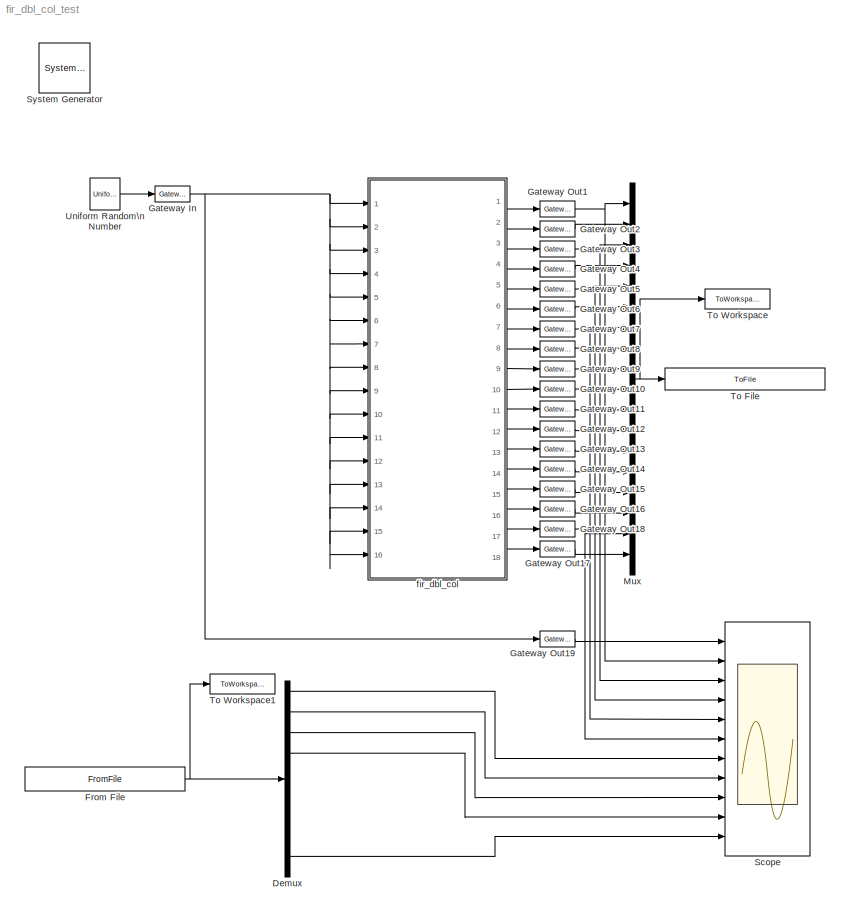
MODEL fir_dbl_col_test
KIND model
BLOCK [Reference]  System Generator  REF=xbsIndex_r4/ System Generator
  AttributesFormatString = System\\nGenerator
  FunctionWithSeparateData = off
  Ports = []
  RTWMemSecDataConstants = Inherit from model
  RTWMemSecDataInternal = Inherit from model
  RTWMemSecDataParameters = Inherit from model
  RTWMemSecFuncExecute = Inherit from model
  RTWMemSecFuncInitTerm = Inherit from model
  ShowPortLabels = FromPortIcon
  SourceBlock = xbsIndex_r4/ System Generator
  SourceType = Xilinx System Generator Block
  SystemSampleTime = -1
  Tag = genX
  UserData = DataTag0
  UserDataPersistent = on
  block_type = sysgen
  block_version = 10.1.1
  clock_wrapper = Clock Enables
  core_generation = According to Block Masks
  dbl_ovrd = According to Block Masks
  dcm_input_clock_period = 100
  deprecated_control = off
  directory = ./netlist
  eval_field = 0
  has_advanced_control = 0
  incr_netlist = off
  infoedit = System Generator
  package = ff668
  part = xc4vsx35
  run_coregen = off
  sg_icon_stat = 51,50,-1,-1,red,beige,0,07734,right
  sg_mask_display = fprintf('','COMMENT: begin icon graphics');\npatch([0 51 51 0 ],[0 0 50 50 ],[0.93 0.92 0.86]);\npatch([12 4 16 4 12 25 29 33 47 36 25 17 29 17 25 36 47 33 29 25 12 ],[5 13 25 37 45 45 41 45 45 34 45 37 25 13 5 16 5 5 9 5 5 ],[0.6 0.2 0.25]);\nplot([0 51 51 0 0 ],[0 0 50 50 0 ]);\nfprintf('','COMMENT: end icon graphics');\nfprintf('','COMMENT: begin icon text');\nfprintf('','COMMENT: end icon text...<+5ch>
  sggui_pos = -1,-1,-1,-1
  simulink_period = 1
  speed = -10
  synthesis_tool = XST
  sysclk_period = 100
  testbench = off
  trim_vbits = Everywhere in SubSystem
  xilinxfamily = Virtex4
BLOCK [Demux] Demux
  DisplayOption = bar
  Outputs = 18
  Ports = [1, 18]
BLOCK [FromFile] From File
  FileName = fir_dbl_col_test_reference.mat
  SampleTime = 1
BLOCK [Reference] Gateway In  REF=xbsIndex_r4/Gateway In
  LOCs = {}
  Ports = [1, 1]
  SourceBlock = xbsIndex_r4/Gateway In
  SourceType = Xilinx Gateway In Block
  arith_type = Signed  (2's comp)
  bin_pt = 15
  block_type = gatewayin
  block_version = 10.1.1
  dbl_ovrd = off
  has_advanced_control = 0
  hdl_port = on
  infoedit = Gateway in block.  Converts inputs of type Simulink integer, double and fixed point to  Xilinx fixed point type.<P><P>Hardware notes:  In hardware these blocks become top level input ports.
  locs_specified = off
  n_bits = 16
  overflow = Saturate
  period = 1
  quantization = Round  (unbiased: +/- Inf)
  sg_icon_stat = 35,16,1,1,white,yellow,0,00d3666e,right,
  sg_mask_display = fprintf('','COMMENT: begin icon graphics');\npatch([0 1 1 0 ],[0 0 1 1 ],[0.95 0.93 0.65]);\npatch([0.4 0.314286 0.428571 0.314286 0.4 0.514286 0.542857 0.571429 0.714286 0.6 0.514286 0.457143 0.571429 0.457143 0.514286 0.6 0.714286 0.571429 0.542857 0.514286 0.4 ],[0.125 0.3125 0.5625 0.8125 1 1 0.9375 1 1 0.75 0.9375 0.8125 0.5625 0.3125 0.1875 0.375 0.125 0.125 0.1875 0.125 0.125 ],[0.98 0.96 0...<+290ch>
  sggui_pos = 20,20,407,458
  timing_constraint = None
  xl_area = [0,0,0,0,0,0,0]
  xl_use_area = off
BLOCK [Reference] Gateway Out1  REF=xbsIndex_r4/Gateway Out
  LOCs = {}
  Ports = [1, 1]
  SourceBlock = xbsIndex_r4/Gateway Out
  SourceType = Xilinx Gateway Out Block
  block_type = gatewayout
  block_version = 10.1.1
  has_advanced_control = 0
  hdl_port = on
  infoedit = Gateway out block.  Converts Xilinx fixed point inputs into ouputs of type Simulink integer, double, or fixed point.<P><P>Hardware notes:  In hardware these blocks become top level output ports or are discarded, depending on how they are configured.  <repeated x19 — deduplicated; at blocks: Gateway Out1, Gateway Out10, Gateway Out11, Gateway Out12, Gateway Out13, Gateway Out14, Gateway Out15, Gateway Out16, Gateway Out17, Gateway Out18, Gateway Out19, Gateway Out2, Gateway Out3, Gateway Out4, Gateway Out5, Gateway Out6, +3 more>
  locs_specified = off
  sg_icon_stat = 35,16,1,1,white,yellow,0,cc31b7ac,right,
  sg_mask_display = fprintf('','COMMENT: begin icon graphics');\npatch([0 1 1 0 ],[0 0 1 1 ],[0.95 0.93 0.65]);\npatch([0.4 0.314286 0.428571 0.314286 0.4 0.514286 0.542857 0.571429 0.714286 0.6 0.514286 0.457143 0.571429 0.457143 0.514286 0.6 0.714286 0.571429 0.542857 0.514286 0.4 ],[0.125 0.3125 0.5625 0.8125 1 1 0.9375 1 1 0.75 0.9375 0.8125 0.5625 0.3125 0.1875 0.375 0.125 0.125 0.1875 0.125 0.125 ],[0.98 0.96 0...<+291ch>  <repeated x19 — deduplicated; at blocks: Gateway Out1, Gateway Out10, Gateway Out11, Gateway Out12, Gateway Out13, Gateway Out14, Gateway Out15, Gateway Out16, Gateway Out17, Gateway Out18, Gateway Out19, Gateway Out2, Gateway Out3, Gateway Out4, Gateway Out5, Gateway Out6, +3 more>
  sggui_pos = -1,-1,-1,-1
  timing_constraint = None
  xl_area = [0,0,0,0,0,0,0]
  xl_use_area = off
BLOCK [Reference] Gateway Out10  REF=xbsIndex_r4/Gateway Out
  LOCs = {}
  Ports = [1, 1]
  SourceBlock = xbsIndex_r4/Gateway Out
  SourceType = Xilinx Gateway Out Block
  block_type = gatewayout
  block_version = 10.1.1
  has_advanced_control = 0
  hdl_port = on
  locs_specified = off
  sg_icon_stat = 35,16,1,1,white,yellow,0,cc31b7ac,right,
  sggui_pos = -1,-1,-1,-1
  timing_constraint = None
  xl_area = [0,0,0,0,0,0,0]
  xl_use_area = off
BLOCK [Reference] Gateway Out11  REF=xbsIndex_r4/Gateway Out
  LOCs = {}
  Ports = [1, 1]
  SourceBlock = xbsIndex_r4/Gateway Out
  SourceType = Xilinx Gateway Out Block
  block_type = gatewayout
  block_version = 10.1.1
  has_advanced_control = 0
  hdl_port = on
  locs_specified = off
  sg_icon_stat = 35,16,1,1,white,yellow,0,cc31b7ac,right,
  sggui_pos = -1,-1,-1,-1
  timing_constraint = None
  xl_area = [0,0,0,0,0,0,0]
  xl_use_area = off
BLOCK [Reference] Gateway Out12  REF=xbsIndex_r4/Gateway Out
  LOCs = {}
  Ports = [1, 1]
  SourceBlock = xbsIndex_r4/Gateway Out
  SourceType = Xilinx Gateway Out Block
  block_type = gatewayout
  block_version = 10.1.1
  has_advanced_control = 0
  hdl_port = on
  locs_specified = off
  sg_icon_stat = 35,16,1,1,white,yellow,0,cc31b7ac,right,
  sggui_pos = -1,-1,-1,-1
  timing_constraint = None
  xl_area = [0,0,0,0,0,0,0]
  xl_use_area = off
BLOCK [Reference] Gateway Out13  REF=xbsIndex_r4/Gateway Out
  LOCs = {}
  Ports = [1, 1]
  SourceBlock = xbsIndex_r4/Gateway Out
  SourceType = Xilinx Gateway Out Block
  block_type = gatewayout
  block_version = 10.1.1
  has_advanced_control = 0
  hdl_port = on
  locs_specified = off
  sg_icon_stat = 35,16,1,1,white,yellow,0,cc31b7ac,right,
  sggui_pos = -1,-1,-1,-1
  timing_constraint = None
  xl_area = [0,0,0,0,0,0,0]
  xl_use_area = off
BLOCK [Reference] Gateway Out14  REF=xbsIndex_r4/Gateway Out
  LOCs = {}
  Ports = [1, 1]
  SourceBlock = xbsIndex_r4/Gateway Out
  SourceType = Xilinx Gateway Out Block
  block_type = gatewayout
  block_version = 10.1.1
  has_advanced_control = 0
  hdl_port = on
  locs_specified = off
  sg_icon_stat = 35,16,1,1,white,yellow,0,cc31b7ac,right,
  sggui_pos = -1,-1,-1,-1
  timing_constraint = None
  xl_area = [0,0,0,0,0,0,0]
  xl_use_area = off
BLOCK [Reference] Gateway Out15  REF=xbsIndex_r4/Gateway Out
  LOCs = {}
  Ports = [1, 1]
  SourceBlock = xbsIndex_r4/Gateway Out
  SourceType = Xilinx Gateway Out Block
  block_type = gatewayout
  block_version = 10.1.1
  has_advanced_control = 0
  hdl_port = on
  locs_specified = off
  sg_icon_stat = 35,16,1,1,white,yellow,0,cc31b7ac,right,
  sggui_pos = -1,-1,-1,-1
  timing_constraint = None
  xl_area = [0,0,0,0,0,0,0]
  xl_use_area = off
BLOCK [Reference] Gateway Out16  REF=xbsIndex_r4/Gateway Out
  LOCs = {}
  Ports = [1, 1]
  SourceBlock = xbsIndex_r4/Gateway Out
  SourceType = Xilinx Gateway Out Block
  block_type = gatewayout
  block_version = 10.1.1
  has_advanced_control = 0
  hdl_port = on
  locs_specified = off
  sg_icon_stat = 35,16,1,1,white,yellow,0,cc31b7ac,right,
  sggui_pos = -1,-1,-1,-1
  timing_constraint = None
  xl_area = [0,0,0,0,0,0,0]
  xl_use_area = off
BLOCK [Reference] Gateway Out17  REF=xbsIndex_r4/Gateway Out
  LOCs = {}
  Ports = [1, 1]
  SourceBlock = xbsIndex_r4/Gateway Out
  SourceType = Xilinx Gateway Out Block
  block_type = gatewayout
  block_version = 10.1.1
  has_advanced_control = 0
  hdl_port = on
  locs_specified = off
  sg_icon_stat = 35,16,1,1,white,yellow,0,cc31b7ac,right,
  sggui_pos = -1,-1,-1,-1
  timing_constraint = None
  xl_area = [0,0,0,0,0,0,0]
  xl_use_area = off
BLOCK [Reference] Gateway Out18  REF=xbsIndex_r4/Gateway Out
  LOCs = {}
  Ports = [1, 1]
  SourceBlock = xbsIndex_r4/Gateway Out
  SourceType = Xilinx Gateway Out Block
  block_type = gatewayout
  block_version = 10.1.1
  has_advanced_control = 0
  hdl_port = on
  locs_specified = off
  sg_icon_stat = 35,16,1,1,white,yellow,0,cc31b7ac,right,
  sggui_pos = -1,-1,-1,-1
  timing_constraint = None
  xl_area = [0,0,0,0,0,0,0]
  xl_use_area = off
BLOCK [Reference] Gateway Out19  REF=xbsIndex_r4/Gateway Out
  LOCs = {}
  Ports = [1, 1]
  SourceBlock = xbsIndex_r4/Gateway Out
  SourceType = Xilinx Gateway Out Block
  block_type = gatewayout
  block_version = 10.1.1
  has_advanced_control = 0
  hdl_port = on
  locs_specified = off
  sg_icon_stat = 35,16,1,1,white,yellow,0,cc31b7ac,right,
  sggui_pos = -1,-1,-1,-1
  timing_constraint = None
  xl_area = [0,0,0,0,0,0,0]
  xl_use_area = off
BLOCK [Reference] Gateway Out2  REF=xbsIndex_r4/Gateway Out
  LOCs = {}
  Ports = [1, 1]
  SourceBlock = xbsIndex_r4/Gateway Out
  SourceType = Xilinx Gateway Out Block
  block_type = gatewayout
  block_version = 10.1.1
  has_advanced_control = 0
  hdl_port = on
  locs_specified = off
  sg_icon_stat = 35,16,1,1,white,yellow,0,cc31b7ac,right,
  sggui_pos = -1,-1,-1,-1
  timing_constraint = None
  xl_area = [0,0,0,0,0,0,0]
  xl_use_area = off
BLOCK [Reference] Gateway Out3  REF=xbsIndex_r4/Gateway Out
  LOCs = {}
  Ports = [1, 1]
  SourceBlock = xbsIndex_r4/Gateway Out
  SourceType = Xilinx Gateway Out Block
  block_type = gatewayout
  block_version = 10.1.1
  has_advanced_control = 0
  hdl_port = on
  locs_specified = off
  sg_icon_stat = 35,16,1,1,white,yellow,0,cc31b7ac,right,
  sggui_pos = -1,-1,-1,-1
  timing_constraint = None
  xl_area = [0,0,0,0,0,0,0]
  xl_use_area = off
BLOCK [Reference] Gateway Out4  REF=xbsIndex_r4/Gateway Out
  LOCs = {}
  Ports = [1, 1]
  SourceBlock = xbsIndex_r4/Gateway Out
  SourceType = Xilinx Gateway Out Block
  block_type = gatewayout
  block_version = 10.1.1
  has_advanced_control = 0
  hdl_port = on
  locs_specified = off
  sg_icon_stat = 35,16,1,1,white,yellow,0,cc31b7ac,right,
  sggui_pos = -1,-1,-1,-1
  timing_constraint = None
  xl_area = [0,0,0,0,0,0,0]
  xl_use_area = off
BLOCK [Reference] Gateway Out5  REF=xbsIndex_r4/Gateway Out
  LOCs = {}
  Ports = [1, 1]
  SourceBlock = xbsIndex_r4/Gateway Out
  SourceType = Xilinx Gateway Out Block
  block_type = gatewayout
  block_version = 10.1.1
  has_advanced_control = 0
  hdl_port = on
  locs_specified = off
  sg_icon_stat = 35,16,1,1,white,yellow,0,cc31b7ac,right,
  sggui_pos = -1,-1,-1,-1
  timing_constraint = None
  xl_area = [0,0,0,0,0,0,0]
  xl_use_area = off
BLOCK [Reference] Gateway Out6  REF=xbsIndex_r4/Gateway Out
  LOCs = {}
  Ports = [1, 1]
  SourceBlock = xbsIndex_r4/Gateway Out
  SourceType = Xilinx Gateway Out Block
  block_type = gatewayout
  block_version = 10.1.1
  has_advanced_control = 0
  hdl_port = on
  locs_specified = off
  sg_icon_stat = 35,16,1,1,white,yellow,0,cc31b7ac,right,
  sggui_pos = -1,-1,-1,-1
  timing_constraint = None
  xl_area = [0,0,0,0,0,0,0]
  xl_use_area = off
BLOCK [Reference] Gateway Out7  REF=xbsIndex_r4/Gateway Out
  LOCs = {}
  Ports = [1, 1]
  SourceBlock = xbsIndex_r4/Gateway Out
  SourceType = Xilinx Gateway Out Block
  block_type = gatewayout
  block_version = 10.1.1
  has_advanced_control = 0
  hdl_port = on
  locs_specified = off
  sg_icon_stat = 35,16,1,1,white,yellow,0,cc31b7ac,right,
  sggui_pos = -1,-1,-1,-1
  timing_constraint = None
  xl_area = [0,0,0,0,0,0,0]
  xl_use_area = off
BLOCK [Reference] Gateway Out8  REF=xbsIndex_r4/Gateway Out
  LOCs = {}
  Ports = [1, 1]
  SourceBlock = xbsIndex_r4/Gateway Out
  SourceType = Xilinx Gateway Out Block
  block_type = gatewayout
  block_version = 10.1.1
  has_advanced_control = 0
  hdl_port = on
  locs_specified = off
  sg_icon_stat = 35,16,1,1,white,yellow,0,cc31b7ac,right,
  sggui_pos = -1,-1,-1,-1
  timing_constraint = None
  xl_area = [0,0,0,0,0,0,0]
  xl_use_area = off
BLOCK [Reference] Gateway Out9  REF=xbsIndex_r4/Gateway Out
  LOCs = {}
  Ports = [1, 1]
  SourceBlock = xbsIndex_r4/Gateway Out
  SourceType = Xilinx Gateway Out Block
  block_type = gatewayout
  block_version = 10.1.1
  has_advanced_control = 0
  hdl_port = on
  locs_specified = off
  sg_icon_stat = 35,16,1,1,white,yellow,0,cc31b7ac,right,
  sggui_pos = -1,-1,-1,-1
  timing_constraint = None
  xl_area = [0,0,0,0,0,0,0]
  xl_use_area = off
BLOCK [Mux] Mux
  DisplayOption = bar
  Inputs = 18
  Ports = [18, 1]
BLOCK [Scope] Scope
  DataFormat = StructureWithTime
  Floating = off
  NumInputPorts = 11
  Ports = [11]
  SampleTime = 0
  YMax = 5~5~5~5~5~5~5~5~5~5~5
  YMin = -5~-5~-5~-5~-5~-5~-5~-5~-5~-5~-5
BLOCK [ToFile] To File
  Filename = fir_dbl_col_test_output.mat
  MatrixName = output
BLOCK [ToWorkspace] To Workspace
  MaxDataPoints = inf
  SampleTime = -1
  SaveFormat = Array
  VariableName = output
BLOCK [ToWorkspace] To Workspace1
  MaxDataPoints = inf
  SampleTime = -1
  SaveFormat = Array
  VariableName = reference
BLOCK [UniformRandomNumber] Uniform Random\nNumber
  SampleTime = 1
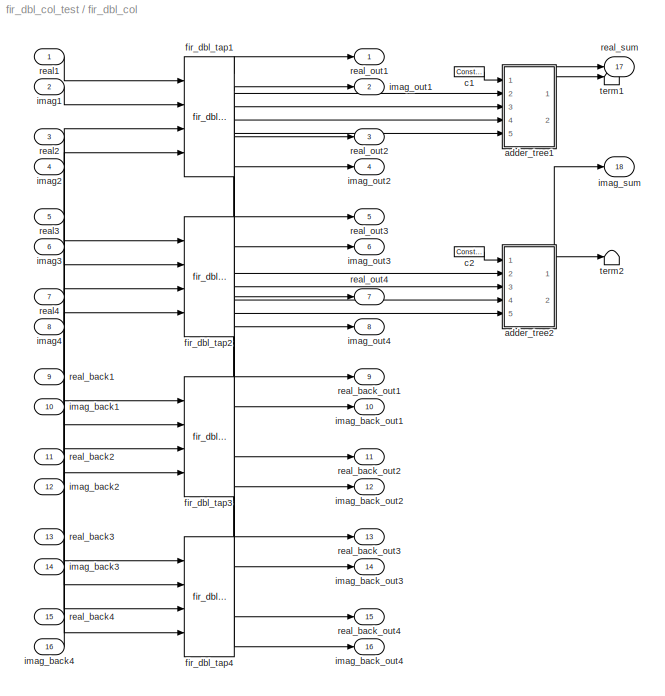
BLOCK [SubSystem] fir_dbl_col
  AncestorBlock = casper_library_downconverter/fir_dbl_col
  FunctionWithSeparateData = off
  MaskCallbackString = |||||||
  MaskEnableString = on,on,on,on,on,on,on,on
  MaskHelp = eval('xlWeb(''http://casper.berkeley.edu/wiki/Fir_dbl_col'')')
  MaskHideContents = off
  MaskIconFrame = on
  MaskIconOpaque = on
  MaskIconRotate = none
  MaskIconUnits = autoscale
  MaskInitialization = fir_dbl_col_init(gcb, ...\n    'n_inputs', n_inputs, ...\n    'coeff', coeff, ...\n    'mult_latency', mult_latency, ...\n    'add_latency', add_latency, ...\n    'coeff_bit_width', coeff_bit_width, ...\n    'coeff_bin_pt', coeff_bin_pt,  ...\n    'first_stage_hdl', first_stage_hdl, ...\n    'adder_imp', adder_imp);
  MaskPromptString = Inputs|Coefficients|Add latency|Mult Latency|Coefficient bit width|Coefficient binary point|Implement first stage of adder trees on output as behavioural HDL|Adder implementation
  MaskSelfModifiable = on
  MaskStyleString = edit,edit,edit,edit,edit,edit,checkbox,popup(Behavioral|Fabric|DSP48)
  MaskTabNameString = ,,,,,,,
  MaskToolTipString = on,on,on,on,on,on,on,on
  MaskTunableValueString = on,on,on,on,on,on,on,on
  MaskType = fir_dbl_col
  MaskValueString = 4|getfield( getfield( get_param( gcb,'UserData' ), 'parameters'),'coeff')|2|2|18|17|on|DSP48
  MaskVarAliasString = ,,,,,,,
  MaskVariables = n_inputs=@1;coeff=@2;add_latency=@3;mult_latency=@4;coeff_bit_width=@5;coeff_bin_pt=@6;first_stage_hdl=&7;adder_imp=&8;
  MaskVisibilityString = on,on,on,on,on,on,on,on
  MinAlgLoopOccurrences = off
  Opaque = off
  Ports = [16, 18]
  PropExecContextOutsideSubsystem = off
  RTWSystemCode = Auto
  RequestExecContextInheritance = off
  UserData = DataTag1
  UserDataPersistent = on
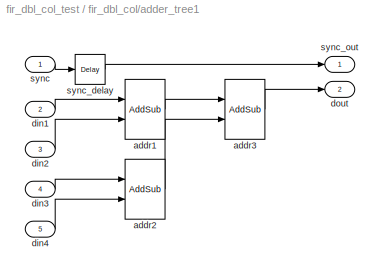
BLOCK [SubSystem] fir_dbl_col/adder_tree1
  AncestorBlock = casper_library_misc/adder_tree
  AttributesFormatString = latency 4
  FunctionWithSeparateData = off
  MaskCallbackString = |||
  MaskDescription = Sums all inputs using a tree of adds and delays.\n\nNumber of inputs: The number of inputs to the block to be summed\nAdd latency: The number of clock cycles to perform one addition (affects timing)..\nAdder implementation: choice of fabric or DSP48E core, or behavioral HDL\nUse behavioural HDL for first stage of adders: Causes the first stage of adders to be absorbed into DSP blocks if multiplier...<+59ch>
  MaskEnableString = on,on,on,on
  MaskHelp = eval('xlWeb(''http://casper.berkeley.edu/wiki/Adder_tree'')')
  MaskHideContents = off
  MaskIconFrame = on
  MaskIconOpaque = on
  MaskIconRotate = none
  MaskIconUnits = autoscale
  MaskInitialization = adder_tree_init(gcb, ...\n    'n_inputs', n_inputs, ...\n    'latency', latency, ...\n    'adder_imp', adder_imp, ...\n    'first_stage_hdl', first_stage_hdl);
  MaskPromptString = Number of Inputs|Add Latency|Adder implementation|Use behavioural HDL for first stage of adders
  MaskSelfModifiable = on
  MaskStyleString = edit,edit,popup(Behavioral|Fabric|DSP48),checkbox
  MaskTabNameString = ,,,
  MaskToolTipString = on,on,on,on
  MaskTunableValueString = on,on,on,on
  MaskType = adder_tree
  MaskValueString = 4|2|DSP48|on
  MaskVarAliasString = ,,,
  MaskVariables = n_inputs=@1;latency=@2;adder_imp=&3;first_stage_hdl=&4;
  MaskVisibilityString = on,on,on,on
  MinAlgLoopOccurrences = off
  Opaque = off
  Ports = [5, 2]
  PropExecContextOutsideSubsystem = off
  RTWSystemCode = Auto
  RequestExecContextInheritance = off
  UserData = DataTag2
  UserDataPersistent = on
BLOCK [Reference] fir_dbl_col/adder_tree1/addr1  REF=xbsIndex_r4/AddSub
  Ports = [2, 1]
  SourceBlock = xbsIndex_r4/AddSub
  SourceType = Xilinx Adder/Subtracter Block
  arith_type = Unsigned
  bin_pt = 14
  block_type = addsub
  block_version = 11.4
  dbl_ovrd = off
  en = off
  has_advanced_control = 0
  hw_selection = DSP48
  latency = 2
  mode = Addition
  n_bits = 16
  overflow = Wrap
  pipelined = on
  precision = Full
  quantization = Truncate
  sg_icon_stat = 40,60,2,1,white,blue,0,4922a24f,right,
  sg_mask_display = fprintf('','COMMENT: begin icon graphics');\npatch([0 1 1 0 ],[0 0 1 1 ],[0.77 0.82 0.91]);\npatch([0.25 0.075 0.3 0.075 0.25 0.525 0.6 0.675 0.95 0.725 0.5 0.35 0.6 0.35 0.5 0.725 0.95 0.675 0.6 0.525 0.25 ],[0.233333 0.35 0.5 0.65 0.766667 0.766667 0.716667 0.766667 0.766667 0.616667 0.766667 0.666667 0.5 0.333333 0.233333 0.383333 0.233333 0.233333 0.283333 0.233333 0.233333 ],[0.98 0.96 0.92])...<+386ch>  <repeated x6 — deduplicated; at blocks: addr1, addr2, addr3>
  sggui_pos = 22,98,419,344
  use_behavioral_HDL = on
  use_carryin = off
  use_carryout = off
  use_rpm = on
  xl_area = [0,0,0,0,0,0,0]
  xl_use_area = off
BLOCK [Reference] fir_dbl_col/adder_tree1/addr2  REF=xbsIndex_r4/AddSub
  Ports = [2, 1]
  SourceBlock = xbsIndex_r4/AddSub
  SourceType = Xilinx Adder/Subtracter Block
  arith_type = Unsigned
  bin_pt = 14
  block_type = addsub
  block_version = 11.4
  dbl_ovrd = off
  en = off
  has_advanced_control = 0
  hw_selection = DSP48
  latency = 2
  mode = Addition
  n_bits = 16
  overflow = Wrap
  pipelined = on
  precision = Full
  quantization = Truncate
  sg_icon_stat = 40,60,2,1,white,blue,0,4922a24f,right,
  sggui_pos = -1,-1,-1,-1
  use_behavioral_HDL = on
  use_carryin = off
  use_carryout = off
  use_rpm = on
  xl_area = [0,0,0,0,0,0,0]
  xl_use_area = off
BLOCK [Reference] fir_dbl_col/adder_tree1/addr3  REF=xbsIndex_r4/AddSub
  Ports = [2, 1]
  SourceBlock = xbsIndex_r4/AddSub
  SourceType = Xilinx Adder/Subtracter Block
  arith_type = Unsigned
  bin_pt = 14
  block_type = addsub
  block_version = 11.4
  dbl_ovrd = off
  en = off
  has_advanced_control = 0
  hw_selection = DSP48
  latency = 2
  mode = Addition
  n_bits = 16
  overflow = Wrap
  pipelined = on
  precision = Full
  quantization = Truncate
  sg_icon_stat = 40,60,2,1,white,blue,0,4922a24f,right,
  sggui_pos = -1,-1,-1,-1
  use_behavioral_HDL = off
  use_carryin = off
  use_carryout = off
  use_rpm = on
  xl_area = [0,0,0,0,0,0,0]
  xl_use_area = off
BLOCK [Inport] fir_dbl_col/adder_tree1/din1
  IconDisplay = Port number
  Port = 2
BLOCK [Inport] fir_dbl_col/adder_tree1/din2
  IconDisplay = Port number
  Port = 3
BLOCK [Inport] fir_dbl_col/adder_tree1/din3
  IconDisplay = Port number
  Port = 4
BLOCK [Inport] fir_dbl_col/adder_tree1/din4
  IconDisplay = Port number
  Port = 5
BLOCK [Outport] fir_dbl_col/adder_tree1/dout
  IconDisplay = Port number
  Port = 2
BLOCK [Inport] fir_dbl_col/adder_tree1/sync
  IconDisplay = Port number
BLOCK [Reference] fir_dbl_col/adder_tree1/sync_delay  REF=xbsIndex_r4/Delay
  Ports = [1, 1]
  SourceBlock = xbsIndex_r4/Delay
  SourceType = Xilinx Delay Block
  block_type = delay
  block_version = 11.4
  dbl_ovrd = off
  en = off
  has_advanced_control = 0
  infoedit = Hardware notes: A delay line is a chain, each link of which is an SRL16 followed by a flip-flop.
  latency = 4
  reg_retiming = on
  sg_icon_stat = 30,30,1,1,white,blue,0,d390c2d8,right,
  sg_mask_display = fprintf('','COMMENT: begin icon graphics');\npatch([0 1 1 0 ],[0 0 1 1 ],[0.77 0.82 0.91]);\npatch([0.233333 0.0666667 0.3 0.0666667 0.233333 0.5 0.566667 0.633333 0.9 0.666667 0.466667 0.3 0.5 0.3 0.466667 0.666667 0.9 0.633333 0.566667 0.5 0.233333 ],[0.1 0.266667 0.5 0.733333 0.9 0.9 0.833333 0.9 0.9 0.666667 0.866667 0.7 0.5 0.3 0.133333 0.333333 0.1 0.1 0.166667 0.1 0.1 ],[0.98 0.96 0.92]);\n...<+204ch>
  sggui_pos = 21,71,419,315
  xl_area = [0,0,0,0,0,0,0]
  xl_use_area = off
BLOCK [Outport] fir_dbl_col/adder_tree1/sync_out
  IconDisplay = Port number
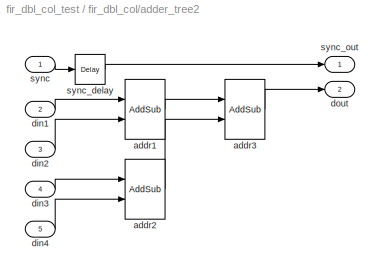
BLOCK [SubSystem] fir_dbl_col/adder_tree2
  AncestorBlock = casper_library_misc/adder_tree
  AttributesFormatString = latency 4
  FunctionWithSeparateData = off
  MaskCallbackString = |||
  MaskDescription = Sums all inputs using a tree of adds and delays.\n\nNumber of inputs: The number of inputs to the block to be summed\nAdd latency: The number of clock cycles to perform one addition (affects timing)..\nAdder implementation: choice of fabric or DSP48E core, or behavioral HDL\nUse behavioural HDL for first stage of adders: Causes the first stage of adders to be absorbed into DSP blocks if multiplier...<+59ch>
  MaskEnableString = on,on,on,on
  MaskHelp = eval('xlWeb(''http://casper.berkeley.edu/wiki/Adder_tree'')')
  MaskHideContents = off
  MaskIconFrame = on
  MaskIconOpaque = on
  MaskIconRotate = none
  MaskIconUnits = autoscale
  MaskInitialization = adder_tree_init(gcb, ...\n    'n_inputs', n_inputs, ...\n    'latency', latency, ...\n    'adder_imp', adder_imp, ...\n    'first_stage_hdl', first_stage_hdl);
  MaskPromptString = Number of Inputs|Add Latency|Adder implementation|Use behavioural HDL for first stage of adders
  MaskSelfModifiable = on
  MaskStyleString = edit,edit,popup(Behavioral|Fabric|DSP48),checkbox
  MaskTabNameString = ,,,
  MaskToolTipString = on,on,on,on
  MaskTunableValueString = on,on,on,on
  MaskType = adder_tree
  MaskValueString = 4|2|DSP48|on
  MaskVarAliasString = ,,,
  MaskVariables = n_inputs=@1;latency=@2;adder_imp=&3;first_stage_hdl=&4;
  MaskVisibilityString = on,on,on,on
  MinAlgLoopOccurrences = off
  Opaque = off
  Ports = [5, 2]
  PropExecContextOutsideSubsystem = off
  RTWSystemCode = Auto
  RequestExecContextInheritance = off
  UserData = DataTag3
  UserDataPersistent = on
BLOCK [Reference] fir_dbl_col/adder_tree2/addr1  REF=xbsIndex_r4/AddSub
  Ports = [2, 1]
  SourceBlock = xbsIndex_r4/AddSub
  SourceType = Xilinx Adder/Subtracter Block
  arith_type = Unsigned
  bin_pt = 14
  block_type = addsub
  block_version = 11.4
  dbl_ovrd = off
  en = off
  has_advanced_control = 0
  hw_selection = DSP48
  latency = 2
  mode = Addition
  n_bits = 16
  overflow = Wrap
  pipelined = on
  precision = Full
  quantization = Truncate
  sg_icon_stat = 40,60,2,1,white,blue,0,4922a24f,right,
  sggui_pos = 22,98,419,344
  use_behavioral_HDL = on
  use_carryin = off
  use_carryout = off
  use_rpm = on
  xl_area = [0,0,0,0,0,0,0]
  xl_use_area = off
BLOCK [Reference] fir_dbl_col/adder_tree2/addr2  REF=xbsIndex_r4/AddSub
  Ports = [2, 1]
  SourceBlock = xbsIndex_r4/AddSub
  SourceType = Xilinx Adder/Subtracter Block
  arith_type = Unsigned
  bin_pt = 14
  block_type = addsub
  block_version = 11.4
  dbl_ovrd = off
  en = off
  has_advanced_control = 0
  hw_selection = DSP48
  latency = 2
  mode = Addition
  n_bits = 16
  overflow = Wrap
  pipelined = on
  precision = Full
  quantization = Truncate
  sg_icon_stat = 40,60,2,1,white,blue,0,4922a24f,right,
  sggui_pos = -1,-1,-1,-1
  use_behavioral_HDL = on
  use_carryin = off
  use_carryout = off
  use_rpm = on
  xl_area = [0,0,0,0,0,0,0]
  xl_use_area = off
BLOCK [Reference] fir_dbl_col/adder_tree2/addr3  REF=xbsIndex_r4/AddSub
  Ports = [2, 1]
  SourceBlock = xbsIndex_r4/AddSub
  SourceType = Xilinx Adder/Subtracter Block
  arith_type = Unsigned
  bin_pt = 14
  block_type = addsub
  block_version = 11.4
  dbl_ovrd = off
  en = off
  has_advanced_control = 0
  hw_selection = DSP48
  latency = 2
  mode = Addition
  n_bits = 16
  overflow = Wrap
  pipelined = on
  precision = Full
  quantization = Truncate
  sg_icon_stat = 40,60,2,1,white,blue,0,4922a24f,right,
  sggui_pos = -1,-1,-1,-1
  use_behavioral_HDL = off
  use_carryin = off
  use_carryout = off
  use_rpm = on
  xl_area = [0,0,0,0,0,0,0]
  xl_use_area = off
BLOCK [Inport] fir_dbl_col/adder_tree2/din1
  IconDisplay = Port number
  Port = 2
BLOCK [Inport] fir_dbl_col/adder_tree2/din2
  IconDisplay = Port number
  Port = 3
BLOCK [Inport] fir_dbl_col/adder_tree2/din3
  IconDisplay = Port number
  Port = 4
BLOCK [Inport] fir_dbl_col/adder_tree2/din4
  IconDisplay = Port number
  Port = 5
BLOCK [Outport] fir_dbl_col/adder_tree2/dout
  IconDisplay = Port number
  Port = 2
BLOCK [Inport] fir_dbl_col/adder_tree2/sync
  IconDisplay = Port number
BLOCK [Reference] fir_dbl_col/adder_tree2/sync_delay  REF=xbsIndex_r4/Delay
  Ports = [1, 1]
  SourceBlock = xbsIndex_r4/Delay
  SourceType = Xilinx Delay Block
  block_type = delay
  block_version = 11.4
  dbl_ovrd = off
  en = off
  has_advanced_control = 0
  infoedit = Hardware notes: A delay line is a chain, each link of which is an SRL16 followed by a flip-flop.
  latency = 4
  reg_retiming = on
  sg_icon_stat = 30,30,1,1,white,blue,0,d390c2d8,right,
  sg_mask_display = fprintf('','COMMENT: begin icon graphics');\npatch([0 1 1 0 ],[0 0 1 1 ],[0.77 0.82 0.91]);\npatch([0.233333 0.0666667 0.3 0.0666667 0.233333 0.5 0.566667 0.633333 0.9 0.666667 0.466667 0.3 0.5 0.3 0.466667 0.666667 0.9 0.633333 0.566667 0.5 0.233333 ],[0.1 0.266667 0.5 0.733333 0.9 0.9 0.833333 0.9 0.9 0.666667 0.866667 0.7 0.5 0.3 0.133333 0.333333 0.1 0.1 0.166667 0.1 0.1 ],[0.98 0.96 0.92]);\n...<+204ch>
  sggui_pos = 21,71,419,315
  xl_area = [0,0,0,0,0,0,0]
  xl_use_area = off
BLOCK [Outport] fir_dbl_col/adder_tree2/sync_out
  IconDisplay = Port number
BLOCK [Reference] fir_dbl_col/c1  REF=xbsIndex_r4/Constant
  Ports = [0, 1]
  SourceBlock = xbsIndex_r4/Constant
  SourceType = Xilinx Constant Block Block
  arith_type = Signed (2's comp)
  bin_pt = 14
  block_type = constant
  block_version = 11.4
  carry = CIN
  const = 1
  dbl_ovrd = off
  dsp48_infoedit = The use of this block for DSP48 instructions is deprecated.  Please use the Opmode block.
  equ = P=C
  explicit_period = on
  has_advanced_control = 0
  inp1 = P
  inp2 = PCIN>>17
  n_bits = 16
  opr = +
  opselect = C
  period = 1
  sg_icon_stat = 30,10,0,1,white,blue,0,1c72b5be,right,
  sg_mask_display = fprintf('','COMMENT: begin icon graphics');\npatch([0 1 1 0 ],[0 0 1 1 ],[0.77 0.82 0.91]);\npatch([0.433333 0.366667 0.433333 0.366667 0.433333 0.533333 0.566667 0.6 0.7 0.633333 0.566667 0.5 0.566667 0.5 0.566667 0.633333 0.7 0.6 0.566667 0.533333 0.433333 ],[0.1 0.3 0.5 0.7 0.9 0.9 0.8 0.9 0.9 0.7 0.9 0.7 0.5 0.3 0.1 0.3 0.1 0.1 0.2 0.1 0.1 ],[0.98 0.96 0.92]);\nplot([0 1 1 0 0 ],[0 0 1 1 0 ]);...<+169ch>
  sggui_pos = -1,-1,-1,-1
BLOCK [Reference] fir_dbl_col/c2  REF=xbsIndex_r4/Constant
  Ports = [0, 1]
  SourceBlock = xbsIndex_r4/Constant
  SourceType = Xilinx Constant Block Block
  arith_type = Signed (2's comp)
  bin_pt = 14
  block_type = constant
  block_version = 11.4
  carry = CIN
  const = 1
  dbl_ovrd = off
  dsp48_infoedit = The use of this block for DSP48 instructions is deprecated.  Please use the Opmode block.
  equ = P=C
  explicit_period = on
  has_advanced_control = 0
  inp1 = P
  inp2 = PCIN>>17
  n_bits = 16
  opr = +
  opselect = C
  period = 1
  sg_icon_stat = 30,10,0,1,white,blue,0,1c72b5be,right,
  sg_mask_display = fprintf('','COMMENT: begin icon graphics');\npatch([0 1 1 0 ],[0 0 1 1 ],[0.77 0.82 0.91]);\npatch([0.433333 0.366667 0.433333 0.366667 0.433333 0.533333 0.566667 0.6 0.7 0.633333 0.566667 0.5 0.566667 0.5 0.566667 0.633333 0.7 0.6 0.566667 0.533333 0.433333 ],[0.1 0.3 0.5 0.7 0.9 0.9 0.8 0.9 0.9 0.7 0.9 0.7 0.5 0.3 0.1 0.3 0.1 0.1 0.2 0.1 0.1 ],[0.98 0.96 0.92]);\nplot([0 1 1 0 0 ],[0 0 1 1 0 ]);...<+169ch>
  sggui_pos = -1,-1,-1,-1
BLOCK [Reference] fir_dbl_col/fir_dbl_tap1  REF=casper_library_downconverter/fir_dbl_tap
  FunctionWithSeparateData = off
  Ports = [4, 6]
  RTWMemSecDataConstants = Inherit from model
  RTWMemSecDataInternal = Inherit from model
  RTWMemSecDataParameters = Inherit from model
  RTWMemSecFuncExecute = Inherit from model
  RTWMemSecFuncInitTerm = Inherit from model
  ShowPortLabels = FromPortIcon
  SourceBlock = casper_library_downconverter/fir_dbl_tap
  SourceType = fir_dbl_tap
  SystemSampleTime = -1
  add_latency = 2
  coeff_bin_pt = 17
  coeff_bit_width = 18
  factor = 0.1
  mult_latency = 2
BLOCK [Reference] fir_dbl_col/fir_dbl_tap2  REF=casper_library_downconverter/fir_dbl_tap
  FunctionWithSeparateData = off
  Ports = [4, 6]
  RTWMemSecDataConstants = Inherit from model
  RTWMemSecDataInternal = Inherit from model
  RTWMemSecDataParameters = Inherit from model
  RTWMemSecFuncExecute = Inherit from model
  RTWMemSecFuncInitTerm = Inherit from model
  ShowPortLabels = FromPortIcon
  SourceBlock = casper_library_downconverter/fir_dbl_tap
  SourceType = fir_dbl_tap
  SystemSampleTime = -1
  add_latency = 2
  coeff_bin_pt = 17
  coeff_bit_width = 18
  factor = 0.2
  mult_latency = 2
BLOCK [Reference] fir_dbl_col/fir_dbl_tap3  REF=casper_library_downconverter/fir_dbl_tap
  FunctionWithSeparateData = off
  Ports = [4, 6]
  RTWMemSecDataConstants = Inherit from model
  RTWMemSecDataInternal = Inherit from model
  RTWMemSecDataParameters = Inherit from model
  RTWMemSecFuncExecute = Inherit from model
  RTWMemSecFuncInitTerm = Inherit from model
  ShowPortLabels = FromPortIcon
  SourceBlock = casper_library_downconverter/fir_dbl_tap
  SourceType = fir_dbl_tap
  SystemSampleTime = -1
  add_latency = 2
  coeff_bin_pt = 17
  coeff_bit_width = 18
  factor = 0.3
  mult_latency = 2
BLOCK [Reference] fir_dbl_col/fir_dbl_tap4  REF=casper_library_downconverter/fir_dbl_tap
  FunctionWithSeparateData = off
  Ports = [4, 6]
  RTWMemSecDataConstants = Inherit from model
  RTWMemSecDataInternal = Inherit from model
  RTWMemSecDataParameters = Inherit from model
  RTWMemSecFuncExecute = Inherit from model
  RTWMemSecFuncInitTerm = Inherit from model
  ShowPortLabels = FromPortIcon
  SourceBlock = casper_library_downconverter/fir_dbl_tap
  SourceType = fir_dbl_tap
  SystemSampleTime = -1
  add_latency = 2
  coeff_bin_pt = 17
  coeff_bit_width = 18
  factor = 0.4
  mult_latency = 2
BLOCK [Inport] fir_dbl_col/imag1
  IconDisplay = Port number
  Port = 2
BLOCK [Inport] fir_dbl_col/imag2
  IconDisplay = Port number
  Port = 4
BLOCK [Inport] fir_dbl_col/imag3
  IconDisplay = Port number
  Port = 6
BLOCK [Inport] fir_dbl_col/imag4
  IconDisplay = Port number
  Port = 8
BLOCK [Inport] fir_dbl_col/imag_back1
  IconDisplay = Port number
  Port = 10
BLOCK [Inport] fir_dbl_col/imag_back2
  IconDisplay = Port number
  Port = 12
BLOCK [Inport] fir_dbl_col/imag_back3
  IconDisplay = Port number
  Port = 14
BLOCK [Inport] fir_dbl_col/imag_back4
  IconDisplay = Port number
  Port = 16
BLOCK [Outport] fir_dbl_col/imag_back_out1
  IconDisplay = Port number
  Port = 10
BLOCK [Outport] fir_dbl_col/imag_back_out2
  IconDisplay = Port number
  Port = 12
BLOCK [Outport] fir_dbl_col/imag_back_out3
  IconDisplay = Port number
  Port = 14
BLOCK [Outport] fir_dbl_col/imag_back_out4
  IconDisplay = Port number
  Port = 16
BLOCK [Outport] fir_dbl_col/imag_out1
  IconDisplay = Port number
  Port = 2
BLOCK [Outport] fir_dbl_col/imag_out2
  IconDisplay = Port number
  Port = 4
BLOCK [Outport] fir_dbl_col/imag_out3
  IconDisplay = Port number
  Port = 6
BLOCK [Outport] fir_dbl_col/imag_out4
  IconDisplay = Port number
  Port = 8
BLOCK [Outport] fir_dbl_col/imag_sum
  IconDisplay = Port number
  Port = 18
BLOCK [Inport] fir_dbl_col/real1
  IconDisplay = Port number
BLOCK [Inport] fir_dbl_col/real2
  IconDisplay = Port number
  Port = 3
BLOCK [Inport] fir_dbl_col/real3
  IconDisplay = Port number
  Port = 5
BLOCK [Inport] fir_dbl_col/real4
  IconDisplay = Port number
  Port = 7
BLOCK [Inport] fir_dbl_col/real_back1
  IconDisplay = Port number
  Port = 9
BLOCK [Inport] fir_dbl_col/real_back2
  IconDisplay = Port number
  Port = 11
BLOCK [Inport] fir_dbl_col/real_back3
  IconDisplay = Port number
  Port = 13
BLOCK [Inport] fir_dbl_col/real_back4
  IconDisplay = Port number
  Port = 15
BLOCK [Outport] fir_dbl_col/real_back_out1
  IconDisplay = Port number
  Port = 9
BLOCK [Outport] fir_dbl_col/real_back_out2
  IconDisplay = Port number
  Port = 11
BLOCK [Outport] fir_dbl_col/real_back_out3
  IconDisplay = Port number
  Port = 13
BLOCK [Outport] fir_dbl_col/real_back_out4
  IconDisplay = Port number
  Port = 15
BLOCK [Outport] fir_dbl_col/real_out1
  IconDisplay = Port number
BLOCK [Outport] fir_dbl_col/real_out2
  IconDisplay = Port number
  Port = 3
BLOCK [Outport] fir_dbl_col/real_out3
  IconDisplay = Port number
  Port = 5
BLOCK [Outport] fir_dbl_col/real_out4
  IconDisplay = Port number
  Port = 7
BLOCK [Outport] fir_dbl_col/real_sum
  IconDisplay = Port number
  Port = 17
BLOCK [Terminator] fir_dbl_col/term1
BLOCK [Terminator] fir_dbl_col/term2
LINE Demux:1 -> Scope:7
LINE Demux:17 -> Scope:11
LINE Demux:3 -> Scope:8
LINE Demux:5 -> Scope:9
LINE Demux:7 -> Scope:10
NET From File:1 -> Demux:1, To Workspace1:1
NET Gateway In:1 -> Gateway Out19:1, fir_dbl_col:1, fir_dbl_col:10, fir_dbl_col:11, fir_dbl_col:12, fir_dbl_col:13, fir_dbl_col:14, fir_dbl_col:15, fir_dbl_col:16, fir_dbl_col:2, fir_dbl_col:3, fir_dbl_col:4, fir_dbl_col:5, fir_dbl_col:6, fir_dbl_col:7, fir_dbl_col:8, fir_dbl_col:9
LINE Gateway Out10:1 -> Mux:10
LINE Gateway Out11:1 -> Mux:11
LINE Gateway Out12:1 -> Mux:12
LINE Gateway Out13:1 -> Mux:13
LINE Gateway Out14:1 -> Mux:14
LINE Gateway Out15:1 -> Mux:15
LINE Gateway Out16:1 -> Mux:16
LINE Gateway Out17:1 -> Mux:18
NET Gateway Out18:1 -> Mux:17, Scope:6
LINE Gateway Out19:1 -> Scope:1
NET Gateway Out1:1 -> Mux:1, Scope:2
LINE Gateway Out2:1 -> Mux:2
NET Gateway Out3:1 -> Mux:3, Scope:3
LINE Gateway Out4:1 -> Mux:4
NET Gateway Out5:1 -> Mux:5, Scope:4
LINE Gateway Out6:1 -> Mux:6
NET Gateway Out7:1 -> Mux:7, Scope:5
LINE Gateway Out8:1 -> Mux:8
LINE Gateway Out9:1 -> Mux:9
NET Mux:1 -> To File:1, To Workspace:1
LINE Uniform Random\nNumber:1 -> Gateway In:1
LINE fir_dbl_col/adder_tree1/addr1:1 -> fir_dbl_col/adder_tree1/addr3:1
LINE fir_dbl_col/adder_tree1/addr2:1 -> fir_dbl_col/adder_tree1/addr3:2
LINE fir_dbl_col/adder_tree1/addr3:1 -> fir_dbl_col/adder_tree1/dout:1
LINE fir_dbl_col/adder_tree1/din1:1 -> fir_dbl_col/adder_tree1/addr1:1
LINE fir_dbl_col/adder_tree1/din2:1 -> fir_dbl_col/adder_tree1/addr1:2
LINE fir_dbl_col/adder_tree1/din3:1 -> fir_dbl_col/adder_tree1/addr2:1
LINE fir_dbl_col/adder_tree1/din4:1 -> fir_dbl_col/adder_tree1/addr2:2
LINE fir_dbl_col/adder_tree1/sync:1 -> fir_dbl_col/adder_tree1/sync_delay:1
LINE fir_dbl_col/adder_tree1/sync_delay:1 -> fir_dbl_col/adder_tree1/sync_out:1
LINE fir_dbl_col/adder_tree1:1 -> fir_dbl_col/term1:1
LINE fir_dbl_col/adder_tree1:2 -> fir_dbl_col/real_sum:1
LINE fir_dbl_col/adder_tree2/addr1:1 -> fir_dbl_col/adder_tree2/addr3:1
LINE fir_dbl_col/adder_tree2/addr2:1 -> fir_dbl_col/adder_tree2/addr3:2
LINE fir_dbl_col/adder_tree2/addr3:1 -> fir_dbl_col/adder_tree2/dout:1
LINE fir_dbl_col/adder_tree2/din1:1 -> fir_dbl_col/adder_tree2/addr1:1
LINE fir_dbl_col/adder_tree2/din2:1 -> fir_dbl_col/adder_tree2/addr1:2
LINE fir_dbl_col/adder_tree2/din3:1 -> fir_dbl_col/adder_tree2/addr2:1
LINE fir_dbl_col/adder_tree2/din4:1 -> fir_dbl_col/adder_tree2/addr2:2
LINE fir_dbl_col/adder_tree2/sync:1 -> fir_dbl_col/adder_tree2/sync_delay:1
LINE fir_dbl_col/adder_tree2/sync_delay:1 -> fir_dbl_col/adder_tree2/sync_out:1
LINE fir_dbl_col/adder_tree2:1 -> fir_dbl_col/term2:1
LINE fir_dbl_col/adder_tree2:2 -> fir_dbl_col/imag_sum:1
LINE fir_dbl_col/c1:1 -> fir_dbl_col/adder_tree1:1
LINE fir_dbl_col/c2:1 -> fir_dbl_col/adder_tree2:1
LINE fir_dbl_col/fir_dbl_tap1:1 -> fir_dbl_col/real_out1:1
LINE fir_dbl_col/fir_dbl_tap1:2 -> fir_dbl_col/imag_out1:1
LINE fir_dbl_col/fir_dbl_tap1:3 -> fir_dbl_col/real_back_out4:1
LINE fir_dbl_col/fir_dbl_tap1:4 -> fir_dbl_col/imag_back_out4:1
LINE fir_dbl_col/fir_dbl_tap1:5 -> fir_dbl_col/adder_tree1:2
LINE fir_dbl_col/fir_dbl_tap1:6 -> fir_dbl_col/adder_tree2:2
LINE fir_dbl_col/fir_dbl_tap2:1 -> fir_dbl_col/real_out2:1
LINE fir_dbl_col/fir_dbl_tap2:2 -> fir_dbl_col/imag_out2:1
LINE fir_dbl_col/fir_dbl_tap2:3 -> fir_dbl_col/real_back_out3:1
LINE fir_dbl_col/fir_dbl_tap2:4 -> fir_dbl_col/imag_back_out3:1
LINE fir_dbl_col/fir_dbl_tap2:5 -> fir_dbl_col/adder_tree1:3
LINE fir_dbl_col/fir_dbl_tap2:6 -> fir_dbl_col/adder_tree2:3
LINE fir_dbl_col/fir_dbl_tap3:1 -> fir_dbl_col/real_out3:1
LINE fir_dbl_col/fir_dbl_tap3:2 -> fir_dbl_col/imag_out3:1
LINE fir_dbl_col/fir_dbl_tap3:3 -> fir_dbl_col/real_back_out2:1
LINE fir_dbl_col/fir_dbl_tap3:4 -> fir_dbl_col/imag_back_out2:1
LINE fir_dbl_col/fir_dbl_tap3:5 -> fir_dbl_col/adder_tree1:4
LINE fir_dbl_col/fir_dbl_tap3:6 -> fir_dbl_col/adder_tree2:4
LINE fir_dbl_col/fir_dbl_tap4:1 -> fir_dbl_col/real_out4:1
LINE fir_dbl_col/fir_dbl_tap4:2 -> fir_dbl_col/imag_out4:1
LINE fir_dbl_col/fir_dbl_tap4:3 -> fir_dbl_col/real_back_out1:1
LINE fir_dbl_col/fir_dbl_tap4:4 -> fir_dbl_col/imag_back_out1:1
LINE fir_dbl_col/fir_dbl_tap4:5 -> fir_dbl_col/adder_tree1:5
LINE fir_dbl_col/fir_dbl_tap4:6 -> fir_dbl_col/adder_tree2:5
LINE fir_dbl_col/imag1:1 -> fir_dbl_col/fir_dbl_tap1:2
LINE fir_dbl_col/imag2:1 -> fir_dbl_col/fir_dbl_tap2:2
LINE fir_dbl_col/imag3:1 -> fir_dbl_col/fir_dbl_tap3:2
LINE fir_dbl_col/imag4:1 -> fir_dbl_col/fir_dbl_tap4:2
LINE fir_dbl_col/imag_back1:1 -> fir_dbl_col/fir_dbl_tap4:4
LINE fir_dbl_col/imag_back2:1 -> fir_dbl_col/fir_dbl_tap3:4
LINE fir_dbl_col/imag_back3:1 -> fir_dbl_col/fir_dbl_tap2:4
LINE fir_dbl_col/imag_back4:1 -> fir_dbl_col/fir_dbl_tap1:4
LINE fir_dbl_col/real1:1 -> fir_dbl_col/fir_dbl_tap1:1
LINE fir_dbl_col/real2:1 -> fir_dbl_col/fir_dbl_tap2:1
LINE fir_dbl_col/real3:1 -> fir_dbl_col/fir_dbl_tap3:1
LINE fir_dbl_col/real4:1 -> fir_dbl_col/fir_dbl_tap4:1
LINE fir_dbl_col/real_back1:1 -> fir_dbl_col/fir_dbl_tap4:3
LINE fir_dbl_col/real_back2:1 -> fir_dbl_col/fir_dbl_tap3:3
LINE fir_dbl_col/real_back3:1 -> fir_dbl_col/fir_dbl_tap2:3
LINE fir_dbl_col/real_back4:1 -> fir_dbl_col/fir_dbl_tap1:3
LINE fir_dbl_col:1 -> Gateway Out1:1
LINE fir_dbl_col:10 -> Gateway Out10:1
LINE fir_dbl_col:11 -> Gateway Out11:1
LINE fir_dbl_col:12 -> Gateway Out12:1
LINE fir_dbl_col:13 -> Gateway Out13:1
LINE fir_dbl_col:14 -> Gateway Out14:1
LINE fir_dbl_col:15 -> Gateway Out15:1
LINE fir_dbl_col:16 -> Gateway Out16:1
LINE fir_dbl_col:17 -> Gateway Out18:1
LINE fir_dbl_col:18 -> Gateway Out17:1
LINE fir_dbl_col:2 -> Gateway Out2:1
LINE fir_dbl_col:3 -> Gateway Out3:1
LINE fir_dbl_col:4 -> Gateway Out4:1
LINE fir_dbl_col:5 -> Gateway Out5:1
LINE fir_dbl_col:6 -> Gateway Out6:1
LINE fir_dbl_col:7 -> Gateway Out7:1
LINE fir_dbl_col:8 -> Gateway Out8:1
LINE fir_dbl_col:9 -> Gateway Out9:1
note: NET lines group one-source signal fan-out (src -> all destinations, sorted); 1:1 wires keep LINE
